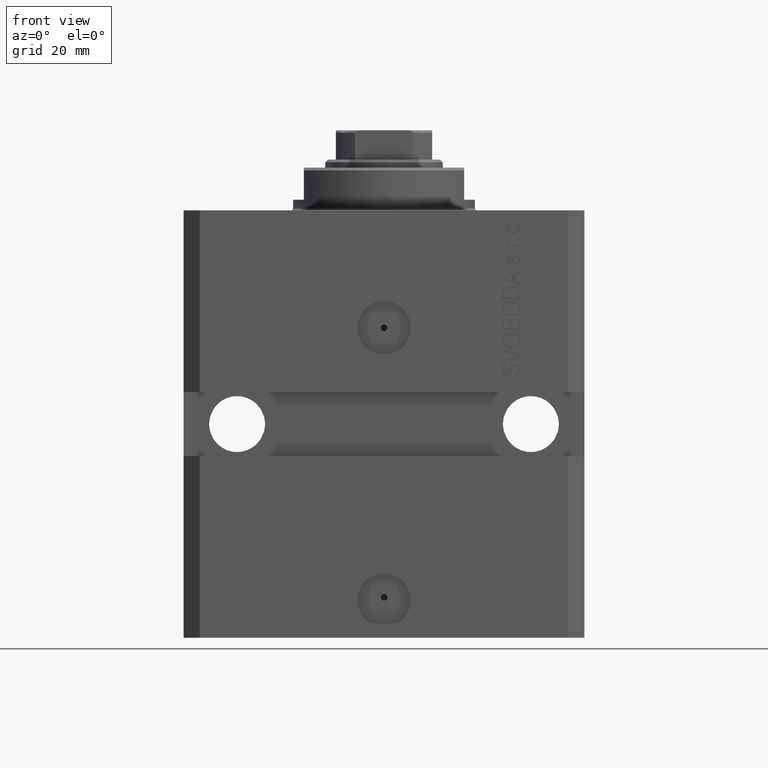
[diagram: clean part render]
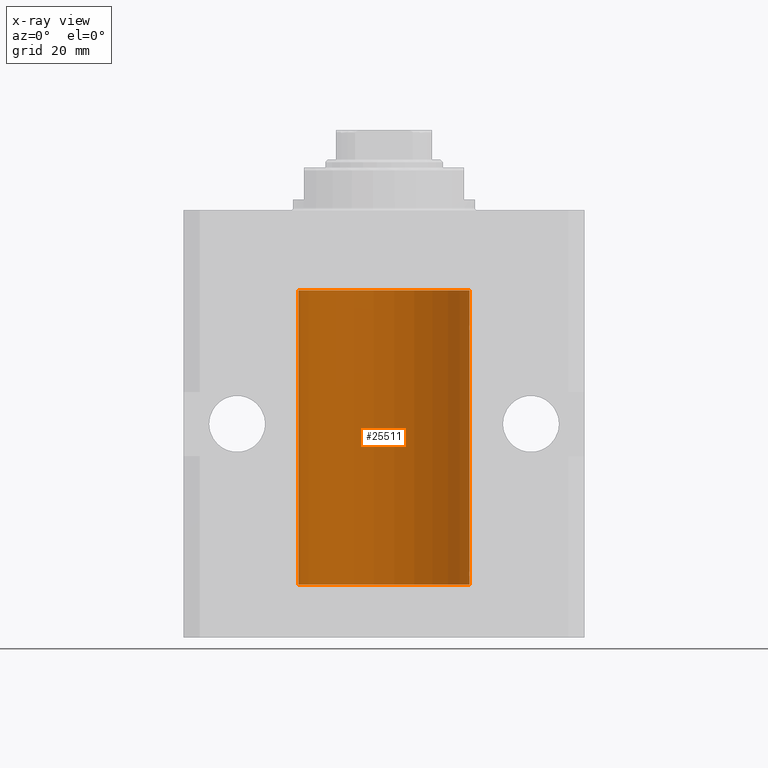
[diagram: x-ray — body ghosted, one internal face saturated and labeled with its STEP entity id]
A machine part, front view, then the same camera in x-ray: the body is ghosted and one INTERNAL B-rep face — a face not visible from any outside direction — is saturated and labeled: STEP entity #25511.
In plain terms, the highlighted cylindrical surface (partial cylindrical patch) has radius 16 mm, axis along (0, 0, 1).
Its self-contained STEP definition (entity closure, byte-faithful):
#275 = VERTEX_POINT ( 'NONE', #26766 ) ;
#724 = CARTESIAN_POINT ( 'NONE',  ( 16.00000000000000000, -1.835653844722709729E-15, -68.62500000000000000 ) ) ;
#1781 = CARTESIAN_POINT ( 'NONE',  ( 15.99548458234361092, 0.3844468804815581731, -22.49947786696349894 ) ) ;
#1811 = AXIS2_PLACEMENT_3D ( 'NONE', #32114, #17685, #3212 ) ;
#2614 = CARTESIAN_POINT ( 'NONE',  ( 16.00000000000013145, 3.665532692826917502E-13, -67.37499999999657518 ) ) ;
#2642 = LINE ( 'NONE', #20180, #10506 ) ;
#3106 = EDGE_CURVE ( 'NONE', #41666, #17925, #7579, .T. ) ;
#3212 = DIRECTION ( 'NONE',  ( 1.000000000000000000, 0.000000000000000000, 0.000000000000000000 ) ) ;
#5675 = CARTESIAN_POINT ( 'NONE',  ( 15.99070695999104252, 0.5461439696926363441, -21.68526802364053552 ) ) ;
#5698 = DIRECTION ( 'NONE',  ( 0.000000000000000000, 0.000000000000000000, 1.000000000000000000 ) ) ;
#6151 = CARTESIAN_POINT ( 'NONE',  ( 15.98844460043492077, 0.6087869699336542206, -21.83657454967558564 ) ) ;
#6329 = CARTESIAN_POINT ( 'NONE',  ( 16.00000000000000000, -1.835653844722709729E-15, -68.62500000000000000 ) ) ;
#6539 = CARTESIAN_POINT ( 'NONE',  ( 15.99711856062700477, 0.3252985083514284281, -67.44140297987711108 ) ) ;
#6640 = CARTESIAN_POINT ( 'NONE',  ( 16.00000000000000000, 6.728408811789801767E-16, -22.62500000000000000 ) ) ;
#7579 = LINE ( 'NONE', #32452, #31552 ) ;
#8896 = CARTESIAN_POINT ( 'NONE',  ( 15.99070366873610993, 0.5574063959866685236, -22.32639436837549951 ) ) ;
#8999 = VERTEX_POINT ( 'NONE', #6640 ) ;
#9050 = EDGE_CURVE ( 'NONE', #17925, #42618, #24964, .T. ) ;
#9160 = CARTESIAN_POINT ( 'NONE',  ( 15.98778830858070954, 0.6250000000080517815, -67.99999999999916156 ) ) ;
#9468 = CARTESIAN_POINT ( 'NONE',  ( 15.99999999999999289, 0.1631343969470015476, -21.37500000000020606 ) ) ;
#9531 = ORIENTED_EDGE ( 'NONE', *, *, #22809, .T. ) ;
#9858 = CARTESIAN_POINT ( 'NONE',  ( 15.98844460043491367, 0.6087869699337551399, -67.83657454967556077 ) ) ;
#10090 = CARTESIAN_POINT ( 'NONE',  ( 16.00000000000013145, 3.665532692826917502E-13, -67.37499999999657518 ) ) ;
#10123 = CARTESIAN_POINT ( 'NONE',  ( 16.00000000000000000, 0.000000000000000000, -70.09999999999999432 ) ) ;
#10506 = VECTOR ( 'NONE', #17109, 1000.000000000000000 ) ;
#11108 = VERTEX_POINT ( 'NONE', #41268 ) ;
#11392 = CARTESIAN_POINT ( 'NONE',  ( 15.99934183755190986, 0.1636877470527013101, -68.60872690654070993 ) ) ;
#11740 = B_SPLINE_CURVE_WITH_KNOTS ( 'NONE', 3,
 ( #9160, #31187, #9858, #28106, #13658, #6539, #32124, #10090 ),
 .UNSPECIFIED., .F., .F.,
 ( 4, 2, 2, 4 ),
 ( 0.0009773326288700682433, 0.001221554802188685399, 0.001465776975507302772, 0.001954221322144537518 ),
 .UNSPECIFIED. ) ;
#12053 = CARTESIAN_POINT ( 'NONE',  ( -16.00000000000000000, 1.959434878635765131E-15, -70.09999999999999432 ) ) ;
#12089 = CARTESIAN_POINT ( 'NONE',  ( 16.00000000000001066, 0.08261762387943044628, -68.62500000000000000 ) ) ;
#13658 = CARTESIAN_POINT ( 'NONE',  ( 15.99228275317786441, 0.5002975944204781644, -67.61642014570176684 ) ) ;
#13737 = CYLINDRICAL_SURFACE ( 'NONE', #45784, 16.00000000000000000 ) ;
#13738 = CARTESIAN_POINT ( 'NONE',  ( 16.00000000000013145, 3.665532684555111376E-13, -21.37499999999658229 ) ) ;
#14000 = B_SPLINE_CURVE_WITH_KNOTS ( 'NONE', 3,
 ( #724, #12089, #11392, #26539, #40984, #15193, #44090, #40059 ),
 .UNSPECIFIED., .F., .F.,
 ( 4, 2, 2, 4 ),
 ( 1.783888443149829469E-18, 0.0002443331572175257886, 0.0004886663144350497342, 0.0009773326288700682433 ),
 .UNSPECIFIED. ) ;
#14201 = B_SPLINE_CURVE_WITH_KNOTS ( 'NONE', 3,
 ( #28180, #20133, #6151, #5675, #20372, #46184, #9468, #13738 ),
 .UNSPECIFIED., .F., .F.,
 ( 4, 2, 2, 4 ),
 ( 0.0009773326288699728335, 0.001221554802188567438, 0.001465776975507162259, 0.001954221322144344530 ),
 .UNSPECIFIED. ) ;
#14697 = CIRCLE ( 'NONE', #1811, 16.00000000000000000 ) ;
#15193 = CARTESIAN_POINT ( 'NONE',  ( 15.99070366873610283, 0.5574063959867601170, -68.32639436837555991 ) ) ;
#15196 = LINE ( 'NONE', #23211, #24109 ) ;
#15337 = EDGE_CURVE ( 'NONE', #21607, #11108, #14000, .T. ) ;
#15569 = CARTESIAN_POINT ( 'NONE',  ( 16.00000000000000711, 0.08261762387942241104, -22.62499999999997158 ) ) ;
#15919 = EDGE_CURVE ( 'NONE', #11108, #26205, #11740, .T. ) ;
#16251 = CARTESIAN_POINT ( 'NONE',  ( 16.00000000000000000, 6.728408811789801767E-16, -22.62500000000000000 ) ) ;
#17088 = DIRECTION ( 'NONE',  ( 1.000000000000000000, 0.000000000000000000, 0.000000000000000000 ) ) ;
#17109 = DIRECTION ( 'NONE',  ( -0.000000000000000000, -0.000000000000000000, 1.000000000000000000 ) ) ;
#17301 = FACE_OUTER_BOUND ( 'NONE', #38304, .T. ) ;
#17685 = DIRECTION ( 'NONE',  ( 0.000000000000000000, 0.000000000000000000, 1.000000000000000000 ) ) ;
#17925 = VERTEX_POINT ( 'NONE', #42350 ) ;
#18093 = EDGE_CURVE ( 'NONE', #26205, #8999, #43058, .T. ) ;
#18256 = CARTESIAN_POINT ( 'NONE',  ( 16.00000000000013145, 3.665532684555111376E-13, -21.37499999999658229 ) ) ;
#20133 = CARTESIAN_POINT ( 'NONE',  ( 15.98778830858104172, 0.6249999999996183053, -21.91847885046212951 ) ) ;
#20180 = CARTESIAN_POINT ( 'NONE',  ( 16.00000000000000000, 0.000000000000000000, -70.09999999999999432 ) ) ;
#20349 = ORIENTED_EDGE ( 'NONE', *, *, #9050, .T. ) ;
#20372 = CARTESIAN_POINT ( 'NONE',  ( 15.99228275317787507, 0.5002975944204000047, -21.61642014570181303 ) ) ;
#21076 = CARTESIAN_POINT ( 'NONE',  ( 0.000000000000000000, 0.000000000000000000, -70.09999999999999432 ) ) ;
#21299 = EDGE_CURVE ( 'NONE', #32998, #41666, #14201, .T. ) ;
#21315 = DIRECTION ( 'NONE',  ( -0.000000000000000000, -0.000000000000000000, 1.000000000000000000 ) ) ;
#21524 = VERTEX_POINT ( 'NONE', #12053 ) ;
#21607 = VERTEX_POINT ( 'NONE', #6329 ) ;
#22809 = EDGE_CURVE ( 'NONE', #8999, #32998, #37849, .T. ) ;
#23211 = CARTESIAN_POINT ( 'NONE',  ( -16.00000000000000000, 1.959434878635765131E-15, -70.09999999999999432 ) ) ;
#23754 = ORIENTED_EDGE ( 'NONE', *, *, #18093, .T. ) ;
#24109 = VECTOR ( 'NONE', #29863, 1000.000000000000000 ) ;
#24256 = ORIENTED_EDGE ( 'NONE', *, *, #15337, .T. ) ;
#24964 = CIRCLE ( 'NONE', #27227, 16.00000000000000000 ) ;
#25511 = ADVANCED_FACE ( 'NONE', ( #17301 ), #13737, .F. ) ;
#25916 = ORIENTED_EDGE ( 'NONE', *, *, #15919, .T. ) ;
#25934 = ORIENTED_EDGE ( 'NONE', *, *, #38545, .T. ) ;
#26205 = VERTEX_POINT ( 'NONE', #2614 ) ;
#26539 = CARTESIAN_POINT ( 'NONE',  ( 15.99707608081895138, 0.3151028052310259620, -68.54594170697733091 ) ) ;
#26766 = CARTESIAN_POINT ( 'NONE',  ( 16.00000000000000000, 0.000000000000000000, -70.09999999999999432 ) ) ;
#27227 = AXIS2_PLACEMENT_3D ( 'NONE', #41714, #5698, #17088 ) ;
#27461 = EDGE_CURVE ( 'NONE', #275, #21524, #14697, .T. ) ;
#28106 = CARTESIAN_POINT ( 'NONE',  ( 15.99070695999103542, 0.5461439696927204990, -67.68526802364047512 ) ) ;
#28180 = CARTESIAN_POINT ( 'NONE',  ( 15.98778830858070954, 0.6250000000079481977, -21.99999999999914735 ) ) ;
#29863 = DIRECTION ( 'NONE',  ( -0.000000000000000000, -0.000000000000000000, 1.000000000000000000 ) ) ;
#29999 = CARTESIAN_POINT ( 'NONE',  ( 15.98778830858101685, 0.6250000000001204592, -22.16311639173018833 ) ) ;
#30236 = CARTESIAN_POINT ( 'NONE',  ( 15.99707608081894783, 0.3151028052309810534, -22.54594170697727762 ) ) ;
#31187 = CARTESIAN_POINT ( 'NONE',  ( 15.98778830858103817, 0.6249999999997223332, -67.91847885046213662 ) ) ;
#31552 = VECTOR ( 'NONE', #36002, 1000.000000000000000 ) ;
#32114 = CARTESIAN_POINT ( 'NONE',  ( 0.000000000000000000, 0.000000000000000000, -70.09999999999999432 ) ) ;
#32124 = CARTESIAN_POINT ( 'NONE',  ( 15.99999999999999645, 0.1631343969470158417, -67.37500000000021316 ) ) ;
#32452 = CARTESIAN_POINT ( 'NONE',  ( 16.00000000000000000, 0.000000000000000000, -70.09999999999999432 ) ) ;
#32477 = ORIENTED_EDGE ( 'NONE', *, *, #21299, .T. ) ;
#32799 = CARTESIAN_POINT ( 'NONE',  ( -16.00000000000000000, 1.959434878635765131E-15, -15.00000000000000000 ) ) ;
#32998 = VERTEX_POINT ( 'NONE', #44130 ) ;
#33086 = ORIENTED_EDGE ( 'NONE', *, *, #3106, .T. ) ;
#33829 = ORIENTED_EDGE ( 'NONE', *, *, #37927, .F. ) ;
#36002 = DIRECTION ( 'NONE',  ( -0.000000000000000000, -0.000000000000000000, 1.000000000000000000 ) ) ;
#37572 = CARTESIAN_POINT ( 'NONE',  ( 15.99934183755190986, 0.1636877470526783007, -22.60872690654068151 ) ) ;
#37849 = B_SPLINE_CURVE_WITH_KNOTS ( 'NONE', 3,
 ( #16251, #15569, #37572, #30236, #1781, #8896, #29999, #44455 ),
 .UNSPECIFIED., .F., .F.,
 ( 4, 2, 2, 4 ),
 ( 6.538667818360814107E-19, 0.0002443331572174917989, 0.0004886663144349829473, 0.0009773326288699728335 ),
 .UNSPECIFIED. ) ;
#37927 = EDGE_CURVE ( 'NONE', #21524, #42618, #15196, .T. ) ;
#38304 = EDGE_LOOP ( 'NONE', ( #33829, #41537, #25934, #24256, #25916, #23754, #9531, #32477, #33086, #20349 ) ) ;
#38545 = EDGE_CURVE ( 'NONE', #275, #21607, #2642, .T. ) ;
#39031 = DIRECTION ( 'NONE',  ( -0.000000000000000000, -0.000000000000000000, 1.000000000000000000 ) ) ;
#40059 = CARTESIAN_POINT ( 'NONE',  ( 15.98778830858070954, 0.6250000000080517815, -67.99999999999916156 ) ) ;
#40984 = CARTESIAN_POINT ( 'NONE',  ( 15.99548458234361448, 0.3844468804816183471, -68.49947786696357355 ) ) ;
#41268 = CARTESIAN_POINT ( 'NONE',  ( 15.98778830858070954, 0.6250000000080517815, -67.99999999999916156 ) ) ;
#41537 = ORIENTED_EDGE ( 'NONE', *, *, #27461, .F. ) ;
#41666 = VERTEX_POINT ( 'NONE', #18256 ) ;
#41714 = CARTESIAN_POINT ( 'NONE',  ( 0.000000000000000000, 0.000000000000000000, -15.00000000000000000 ) ) ;
#41751 = VECTOR ( 'NONE', #39031, 1000.000000000000000 ) ;
#42350 = CARTESIAN_POINT ( 'NONE',  ( 16.00000000000000000, 0.000000000000000000, -15.00000000000000000 ) ) ;
#42618 = VERTEX_POINT ( 'NONE', #32799 ) ;
#43058 = LINE ( 'NONE', #10123, #41751 ) ;
#44090 = CARTESIAN_POINT ( 'NONE',  ( 15.98778830858101685, 0.6250000000002223777, -68.16311639173024162 ) ) ;
#44130 = CARTESIAN_POINT ( 'NONE',  ( 15.98778830858070954, 0.6250000000079481977, -21.99999999999914735 ) ) ;
#44455 = CARTESIAN_POINT ( 'NONE',  ( 15.98778830858070954, 0.6250000000079481977, -21.99999999999914735 ) ) ;
#45784 = AXIS2_PLACEMENT_3D ( 'NONE', #21076, #21315, #46412 ) ;
#46184 = CARTESIAN_POINT ( 'NONE',  ( 15.99711856062700122, 0.3252985083513915687, -21.44140297987714661 ) ) ;
#46412 = DIRECTION ( 'NONE',  ( 1.000000000000000000, 0.000000000000000000, 0.000000000000000000 ) ) ;